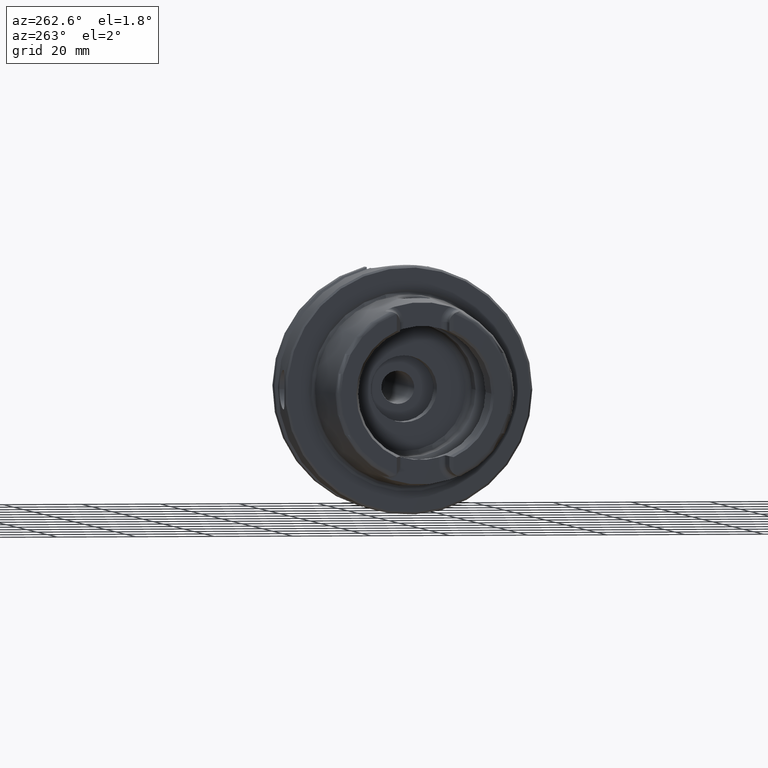
[diagram: clean part render]
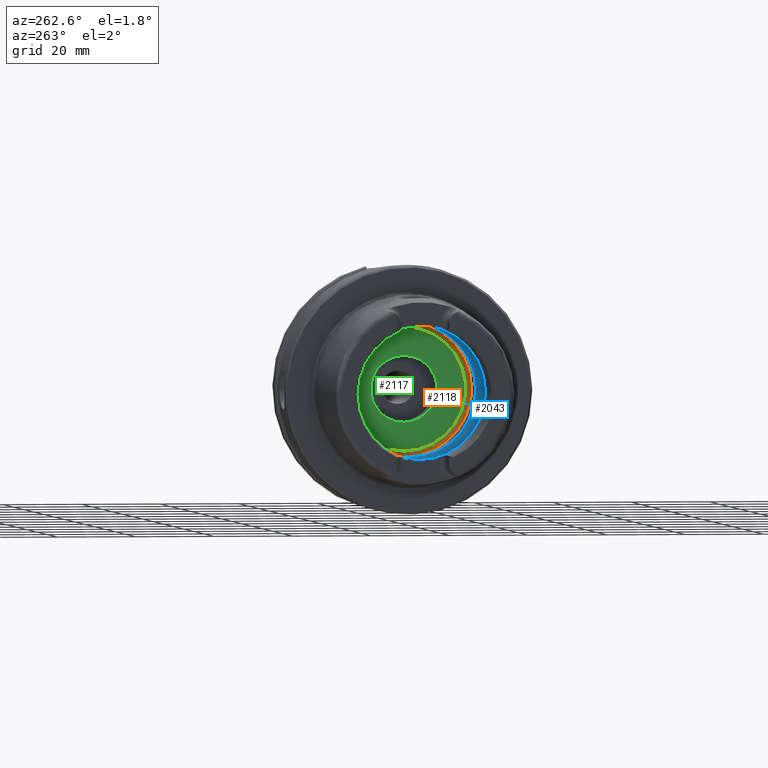
[diagram: same view with three faces highlighted in distinct colors, each labeled with its STEP entity id]
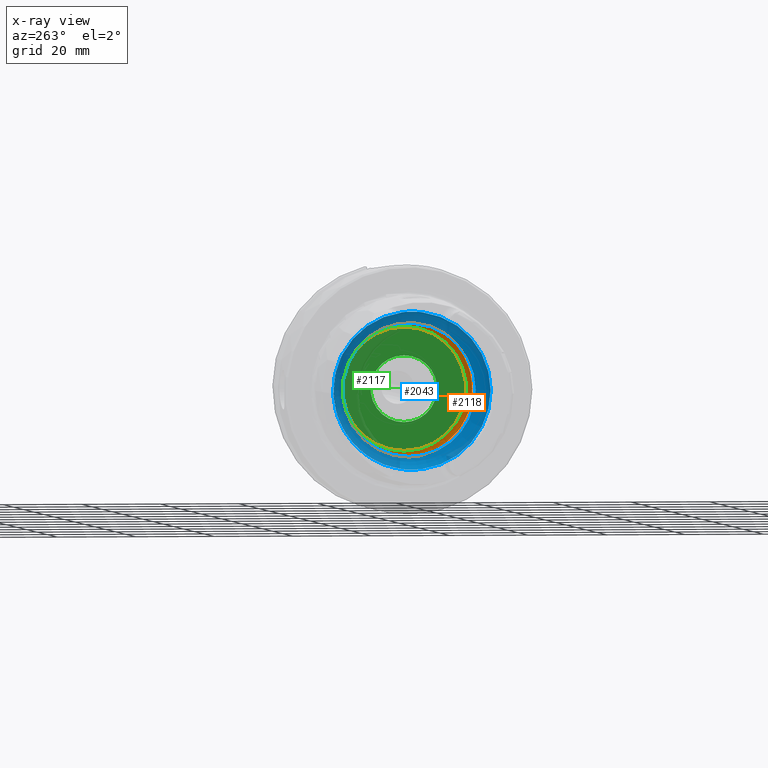
[diagram: x-ray of the same camera — body ghosted, the three highlighted faces saturated]
A machine part, auxiliary view with three faces highlighted in distinct colors.
The next image is the same camera in x-ray (body ghosted, the three faces saturated) — at least one of them is partly hidden behind the body in this view.
Their STEP definitions:

[orange] entity #2118 — the highlighted toroidal blend (fillet) surface has major radius 15.75 mm and minor (blend) radius 1.5 mm.
#165=TOROIDAL_SURFACE('',#2385,15.75,1.5);
#325=FACE_OUTER_BOUND('',#458,.T.);
#458=EDGE_LOOP('',(#1941,#1942,#1943,#1944,#1945));
#803=CIRCLE('',#2384,15.75);
#804=CIRCLE('',#2386,1.5);
#805=CIRCLE('',#2387,17.);
#806=CIRCLE('',#2388,17.);
#1015=VERTEX_POINT('',#4472);
#1016=VERTEX_POINT('',#4475);
#1017=VERTEX_POINT('',#4477);
#1327=EDGE_CURVE('',#1015,#1015,#803,.T.);
#1328=EDGE_CURVE('',#1015,#1016,#804,.T.);
#1329=EDGE_CURVE('',#1016,#1017,#805,.T.);
#1330=EDGE_CURVE('',#1017,#1016,#806,.T.);
#1941=ORIENTED_EDGE('',*,*,#1327,.F.);
#1942=ORIENTED_EDGE('',*,*,#1328,.T.);
#1943=ORIENTED_EDGE('',*,*,#1329,.T.);
#1944=ORIENTED_EDGE('',*,*,#1330,.T.);
#1945=ORIENTED_EDGE('',*,*,#1328,.F.);
#2118=ADVANCED_FACE('',(#325),#165,.F.);
#2384=AXIS2_PLACEMENT_3D('',#4473,#2981,#2982);
#2385=AXIS2_PLACEMENT_3D('',#4474,#2983,#2984);
#2386=AXIS2_PLACEMENT_3D('',#4476,#2985,#2986);
#2387=AXIS2_PLACEMENT_3D('',#4478,#2987,#2988);
#2388=AXIS2_PLACEMENT_3D('',#4479,#2989,#2990);
#2981=DIRECTION('center_axis',(-1.,0.,0.));
#2982=DIRECTION('ref_axis',(0.,0.,1.));
#2983=DIRECTION('center_axis',(-1.,0.,0.));
#2984=DIRECTION('ref_axis',(0.,0.,1.));
#2985=DIRECTION('center_axis',(0.,1.,-1.22464679914735E-16));
#2986=DIRECTION('ref_axis',(0.,-1.22464679914735E-16,-1.));
#2987=DIRECTION('center_axis',(-1.,0.,0.));
#2988=DIRECTION('ref_axis',(0.,0.,1.));
#2989=DIRECTION('center_axis',(-1.,0.,0.));
#2990=DIRECTION('ref_axis',(0.,0.,1.));
#4472=CARTESIAN_POINT('',(10.,-1.92881870865708E-15,-15.75));
#4473=CARTESIAN_POINT('Origin',(10.,0.,0.));
#4474=CARTESIAN_POINT('Origin',(8.5,0.,0.));
#4475=CARTESIAN_POINT('',(7.67084380241115,-2.0818995585505E-15,-17.));
#4476=CARTESIAN_POINT('Origin',(8.5,-1.92881870865708E-15,-15.75));
#4477=CARTESIAN_POINT('',(7.67084380241115,-17.,2.0818995585505E-15));
#4478=CARTESIAN_POINT('Origin',(7.67084380241115,0.,0.));
#4479=CARTESIAN_POINT('Origin',(7.67084380241115,0.,0.));

[blue] entity #2043 — the highlighted toroidal blend (fillet) surface has major radius 12 mm and minor (blend) radius 8 mm.
#49=B_SPLINE_CURVE_WITH_KNOTS('',3,(#3600,#3601,#3602,#3603,#3604,#3605,
#3606,#3607,#3608,#3609,#3610,#3611),.UNSPECIFIED.,.F.,.F.,(4,2,2,2,2,4),
(-0.560647090003115,-0.432465132423936,-0.371738630353782,-0.32053783623797,
-0.287500355516274,-0.280385270121909),.UNSPECIFIED.);
#51=B_SPLINE_CURVE_WITH_KNOTS('',3,(#3644,#3645,#3646,#3647,#3648,#3649,
#3650,#3651,#3652,#3653),.UNSPECIFIED.,.F.,.F.,(4,2,2,2,4),(-0.280385270121909,
-0.256917987419631,-0.21744735037608,-0.138661357565599,0.),
 .UNSPECIFIED.);
#54=B_SPLINE_CURVE_WITH_KNOTS('',3,(#3769,#3770,#3771,#3772,#3773,#3774,
#3775,#3776,#3777,#3778,#3779,#3780),.UNSPECIFIED.,.F.,.F.,(4,2,2,2,2,4),
(-0.560647090003256,-0.432465132424011,-0.371738630353825,-0.32053783623799,
-0.287500355516289,-0.280385270121924),.UNSPECIFIED.);
#56=B_SPLINE_CURVE_WITH_KNOTS('',3,(#3813,#3814,#3815,#3816,#3817,#3818,
#3819,#3820,#3821,#3822),.UNSPECIFIED.,.F.,.F.,(4,2,2,2,4),(-0.280385270121924,
-0.256917987419636,-0.217447350376074,-0.138661357565593,0.),
 .UNSPECIFIED.);
#147=TOROIDAL_SURFACE('',#2242,12.,8.);
#250=FACE_OUTER_BOUND('',#379,.T.);
#379=EDGE_LOOP('',(#1545,#1546,#1547,#1548,#1549,#1550,#1551,#1552,#1553,
#1554,#1555));
#731=CIRCLE('',#2237,20.);
#734=CIRCLE('',#2240,20.);
#735=CIRCLE('',#2241,20.);
#736=CIRCLE('',#2243,17.);
#737=CIRCLE('',#2244,17.);
#738=CIRCLE('',#2245,8.);
#907=VERTEX_POINT('',#3597);
#908=VERTEX_POINT('',#3599);
#909=VERTEX_POINT('',#3612);
#912=VERTEX_POINT('',#3767);
#913=VERTEX_POINT('',#3768);
#914=VERTEX_POINT('',#3781);
#915=VERTEX_POINT('',#3825);
#918=VERTEX_POINT('',#3835);
#919=VERTEX_POINT('',#3836);
#1143=EDGE_CURVE('',#908,#907,#49,.T.);
#1145=EDGE_CURVE('',#907,#909,#51,.T.);
#1149=EDGE_CURVE('',#912,#913,#54,.T.);
#1151=EDGE_CURVE('',#913,#914,#56,.T.);
#1153=EDGE_CURVE('',#915,#912,#731,.T.);
#1157=EDGE_CURVE('',#909,#915,#734,.T.);
#1158=EDGE_CURVE('',#914,#908,#735,.T.);
#1159=EDGE_CURVE('',#918,#919,#736,.T.);
#1160=EDGE_CURVE('',#919,#918,#737,.T.);
#1161=EDGE_CURVE('',#919,#907,#738,.T.);
#1545=ORIENTED_EDGE('',*,*,#1159,.F.);
#1546=ORIENTED_EDGE('',*,*,#1160,.F.);
#1547=ORIENTED_EDGE('',*,*,#1161,.T.);
#1548=ORIENTED_EDGE('',*,*,#1145,.T.);
#1549=ORIENTED_EDGE('',*,*,#1157,.T.);
#1550=ORIENTED_EDGE('',*,*,#1153,.T.);
#1551=ORIENTED_EDGE('',*,*,#1149,.T.);
#1552=ORIENTED_EDGE('',*,*,#1151,.T.);
#1553=ORIENTED_EDGE('',*,*,#1158,.T.);
#1554=ORIENTED_EDGE('',*,*,#1143,.T.);
#1555=ORIENTED_EDGE('',*,*,#1161,.F.);
#2043=ADVANCED_FACE('',(#250),#147,.F.);
#2237=AXIS2_PLACEMENT_3D('',#3826,#2629,#2630);
#2240=AXIS2_PLACEMENT_3D('',#3832,#2636,#2637);
#2241=AXIS2_PLACEMENT_3D('',#3833,#2638,#2639);
#2242=AXIS2_PLACEMENT_3D('',#3834,#2640,#2641);
#2243=AXIS2_PLACEMENT_3D('',#3837,#2642,#2643);
#2244=AXIS2_PLACEMENT_3D('',#3838,#2644,#2645);
#2245=AXIS2_PLACEMENT_3D('',#3839,#2646,#2647);
#2629=DIRECTION('center_axis',(-1.,0.,0.));
#2630=DIRECTION('ref_axis',(0.,0.,1.));
#2636=DIRECTION('center_axis',(-1.,0.,0.));
#2637=DIRECTION('ref_axis',(0.,0.,1.));
#2638=DIRECTION('center_axis',(-1.,0.,0.));
#2639=DIRECTION('ref_axis',(0.,0.,1.));
#2640=DIRECTION('center_axis',(-1.,0.,0.));
#2641=DIRECTION('ref_axis',(0.,0.,1.));
#2642=DIRECTION('center_axis',(-1.,0.,0.));
#2643=DIRECTION('ref_axis',(0.,0.,1.));
#2644=DIRECTION('center_axis',(-1.,0.,0.));
#2645=DIRECTION('ref_axis',(0.,0.,1.));
#2646=DIRECTION('center_axis',(0.,1.,-1.22464679914735E-16));
#2647=DIRECTION('ref_axis',(0.,-1.22464679914735E-16,-1.));
#3597=CARTESIAN_POINT('',(-5.25,3.07683831259085E-16,-19.9378825251564));
#3599=CARTESIAN_POINT('',(-6.2449979983984,2.54410376580264,-19.8375284758165));
#3600=CARTESIAN_POINT('Ctrl Pts',(-6.2449979983984,2.54410376580263,-19.8375284758165));
#3601=CARTESIAN_POINT('Ctrl Pts',(-5.9563832733696,2.23156378381208,-19.877610794847));
#3602=CARTESIAN_POINT('Ctrl Pts',(-5.72238184052007,1.87139505615745,-19.9007586679726));
#3603=CARTESIAN_POINT('Ctrl Pts',(-5.47415257397377,1.29299577523533,-19.9221291461079));
#3604=CARTESIAN_POINT('Ctrl Pts',(-5.40951125063364,1.10084807786171,-19.9269865934584));
#3605=CARTESIAN_POINT('Ctrl Pts',(-5.31953029252225,0.738763665580492,-19.9333991732415));
#3606=CARTESIAN_POINT('Ctrl Pts',(-5.28971989928313,0.57048989328573,-19.9353426103026));
#3607=CARTESIAN_POINT('Ctrl Pts',(-5.25970604483208,0.291260075331645,-19.9372753146995));
#3608=CARTESIAN_POINT('Ctrl Pts',(-5.25276504295341,0.181279004510485,-19.9377089305339));
#3609=CARTESIAN_POINT('Ctrl Pts',(-5.25022501552319,0.0474369436209427,
-19.9378684144199));
#3610=CARTESIAN_POINT('Ctrl Pts',(-5.25,0.0237178817918345,-19.9378825251564));
#3611=CARTESIAN_POINT('Ctrl Pts',(-5.25,1.73633857888389E-16,-19.9378825251564));
#3612=CARTESIAN_POINT('',(-6.2449979983984,-2.54410376580264,-19.8375284758165));
#3644=CARTESIAN_POINT('Ctrl Pts',(-5.25,1.73633857888389E-16,-19.9378825251564));
#3645=CARTESIAN_POINT('Ctrl Pts',(-5.25,-0.0782273446147222,-19.9378825251564));
#3646=CARTESIAN_POINT('Ctrl Pts',(-5.25244785081342,-0.15644185230388,-19.9377296492436));
#3647=CARTESIAN_POINT('Ctrl Pts',(-5.26557067654327,-0.365860616871457,
-19.9368989370107));
#3648=CARTESIAN_POINT('Ctrl Pts',(-5.2807081654794,-0.496671474530444,-19.9359382432917));
#3649=CARTESIAN_POINT('Ctrl Pts',(-5.34656166936447,-0.885366242555149,
-19.9315392091305));
#3650=CARTESIAN_POINT('Ctrl Pts',(-5.41752174824152,-1.13897710923821,-19.9266508951874));
#3651=CARTESIAN_POINT('Ctrl Pts',(-5.68473945553282,-1.81246400136134,-19.9044561094296));
#3652=CARTESIAN_POINT('Ctrl Pts',(-5.93280828188796,-2.20603449935731,-19.880884849314));
#3653=CARTESIAN_POINT('Ctrl Pts',(-6.2449979983984,-2.54410376580263,-19.8375284758165));
#3767=CARTESIAN_POINT('',(-6.2449979983984,-2.54410376580264,19.8375284758165));
#3768=CARTESIAN_POINT('',(-5.25,4.81156178856766E-16,19.9378825251564));
#3769=CARTESIAN_POINT('Ctrl Pts',(-6.2449979983984,-2.54410376580264,19.8375284758165));
#3770=CARTESIAN_POINT('Ctrl Pts',(-5.9563832733696,-2.23156378381209,19.877610794847));
#3771=CARTESIAN_POINT('Ctrl Pts',(-5.72238184052007,-1.87139505615746,19.9007586679726));
#3772=CARTESIAN_POINT('Ctrl Pts',(-5.47415257397376,-1.29299577523533,19.9221291461079));
#3773=CARTESIAN_POINT('Ctrl Pts',(-5.40951125063363,-1.10084807786172,19.9269865934584));
#3774=CARTESIAN_POINT('Ctrl Pts',(-5.31953029252225,-0.738763665580501,
19.9333991732415));
#3775=CARTESIAN_POINT('Ctrl Pts',(-5.28971989928313,-0.570489893285745,
19.9353426103026));
#3776=CARTESIAN_POINT('Ctrl Pts',(-5.25970604483207,-0.291260075331669,
19.9372753146995));
#3777=CARTESIAN_POINT('Ctrl Pts',(-5.2527650429534,-0.181279004510531,19.9377089305339));
#3778=CARTESIAN_POINT('Ctrl Pts',(-5.25022501552319,-0.0474369436209401,
19.9378684144199));
#3779=CARTESIAN_POINT('Ctrl Pts',(-5.25,-0.0237178817918311,19.9378825251564));
#3780=CARTESIAN_POINT('Ctrl Pts',(-5.25,5.15920899939407E-16,19.9378825251564));
#3781=CARTESIAN_POINT('',(-6.2449979983984,2.54410376580264,19.8375284758165));
#3813=CARTESIAN_POINT('Ctrl Pts',(-5.25,5.15920899939407E-16,19.9378825251564));
#3814=CARTESIAN_POINT('Ctrl Pts',(-5.25,0.0782273446147462,19.9378825251564));
#3815=CARTESIAN_POINT('Ctrl Pts',(-5.25244785081342,0.156441852303891,19.9377296492436));
#3816=CARTESIAN_POINT('Ctrl Pts',(-5.26557067654326,0.36586061687142,19.9368989370107));
#3817=CARTESIAN_POINT('Ctrl Pts',(-5.28070816547939,0.496671474530425,19.9359382432917));
#3818=CARTESIAN_POINT('Ctrl Pts',(-5.34656166936446,0.885366242555101,19.9315392091305));
#3819=CARTESIAN_POINT('Ctrl Pts',(-5.41752174824151,1.13897710923819,19.9266508951874));
#3820=CARTESIAN_POINT('Ctrl Pts',(-5.68473945553283,1.81246400136138,19.9044561094296));
#3821=CARTESIAN_POINT('Ctrl Pts',(-5.93280828188797,2.20603449935733,19.880884849314));
#3822=CARTESIAN_POINT('Ctrl Pts',(-6.2449979983984,2.54410376580264,19.8375284758165));
#3825=CARTESIAN_POINT('',(-6.2449979983984,-20.,2.44929359829471E-15));
#3826=CARTESIAN_POINT('Origin',(-6.2449979983984,0.,0.));
#3832=CARTESIAN_POINT('Origin',(-6.2449979983984,0.,0.));
#3833=CARTESIAN_POINT('Origin',(-6.2449979983984,0.,0.));
#3834=CARTESIAN_POINT('Origin',(-6.2449979983984,0.,0.));
#3835=CARTESIAN_POINT('',(0.,-17.,2.0818995585505E-15));
#3836=CARTESIAN_POINT('',(0.,-2.0818995585505E-15,-17.));
#3837=CARTESIAN_POINT('Origin',(0.,0.,0.));
#3838=CARTESIAN_POINT('Origin',(0.,0.,0.));
#3839=CARTESIAN_POINT('Origin',(-6.2449979983984,-1.46957615897682E-15,
-12.));

[green] entity #2117 — the highlighted planar face has unit normal (1, 0, 0).
#100=FACE_BOUND('',#457,.T.);
#142=PLANE('',#2383);
#324=FACE_OUTER_BOUND('',#456,.T.);
#456=EDGE_LOOP('',(#1939));
#457=EDGE_LOOP('',(#1940));
#796=CIRCLE('',#2372,8.458734);
#803=CIRCLE('',#2384,15.75);
#1009=VERTEX_POINT('',#4452);
#1015=VERTEX_POINT('',#4472);
#1318=EDGE_CURVE('',#1009,#1009,#796,.T.);
#1327=EDGE_CURVE('',#1015,#1015,#803,.T.);
#1939=ORIENTED_EDGE('',*,*,#1327,.T.);
#1940=ORIENTED_EDGE('',*,*,#1318,.T.);
#2117=ADVANCED_FACE('',(#324,#100),#142,.F.);
#2372=AXIS2_PLACEMENT_3D('',#4453,#2955,#2956);
#2383=AXIS2_PLACEMENT_3D('',#4471,#2979,#2980);
#2384=AXIS2_PLACEMENT_3D('',#4473,#2981,#2982);
#2955=DIRECTION('center_axis',(1.,0.,0.));
#2956=DIRECTION('ref_axis',(0.,0.,1.));
#2979=DIRECTION('center_axis',(1.,0.,0.));
#2980=DIRECTION('ref_axis',(0.,0.,-1.));
#2981=DIRECTION('center_axis',(-1.,0.,0.));
#2982=DIRECTION('ref_axis',(0.,0.,1.));
#4452=CARTESIAN_POINT('',(10.,-1.03589615179389E-15,-8.458734));
#4453=CARTESIAN_POINT('Origin',(10.,0.,0.));
#4471=CARTESIAN_POINT('Origin',(10.,15.75,0.));
#4472=CARTESIAN_POINT('',(10.,-1.92881870865708E-15,-15.75));
#4473=CARTESIAN_POINT('Origin',(10.,0.,0.));